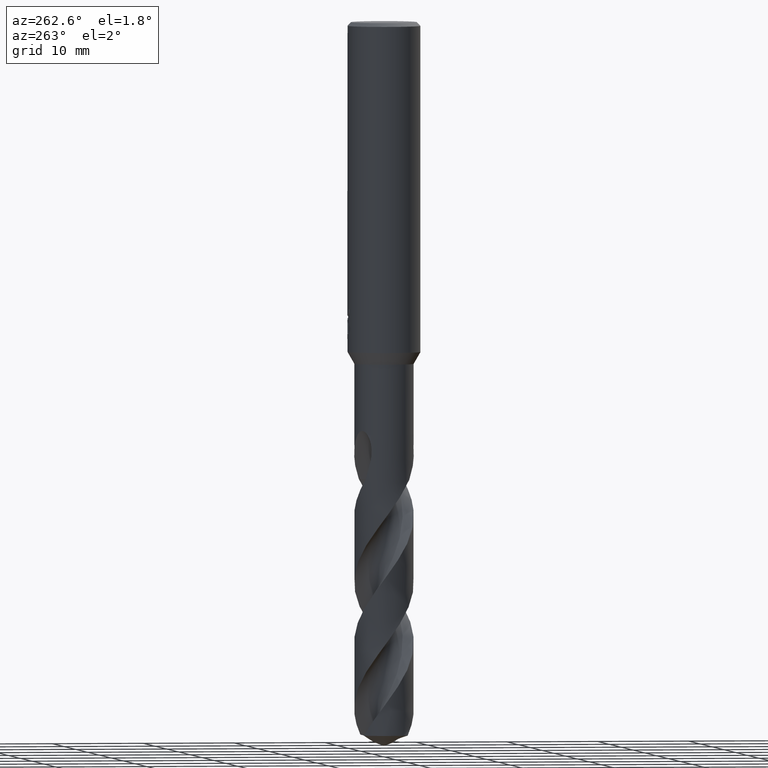
[diagram: clean part render]
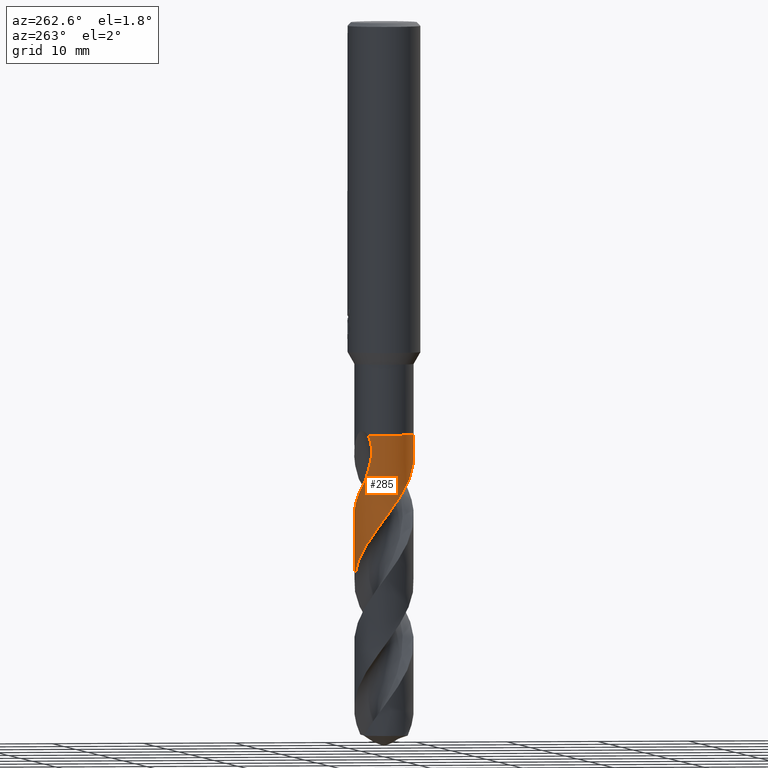
[diagram: same view with one face highlighted and labeled with its STEP entity id]
A machine part, auxiliary view. The second image highlights one B-rep face of the part: STEP entity #285.
In plain terms, the highlighted conical surface has half-angle 0 deg.
Its self-contained STEP definition (entity closure, byte-faithful):
#285=ADVANCED_FACE('',(#778),#779,.T.);
#339=EDGE_CURVE('',#475,#585,#840,.T.);
#341=EDGE_CURVE('',#401,#531,#842,.T.);
#369=EDGE_CURVE('',#639,#691,#870,.T.);
#401=VERTEX_POINT('',#903);
#469=EDGE_CURVE('',#531,#577,#978,.T.);
#475=VERTEX_POINT('',#984);
#531=VERTEX_POINT('',#1046);
#573=EDGE_CURVE('',#585,#639,#1092,.T.);
#577=VERTEX_POINT('',#1096);
#583=EDGE_CURVE('',#691,#709,#1102,.T.);
#585=VERTEX_POINT('',#1104);
#639=VERTEX_POINT('',#1162);
#691=VERTEX_POINT('',#1218);
#695=EDGE_CURVE('',#577,#475,#1223,.T.);
#709=VERTEX_POINT('',#1239);
#717=EDGE_CURVE('',#709,#401,#1247,.T.);
#778=FACE_OUTER_BOUND('',#1327,.T.);
#779=CONICAL_SURFACE('',#1328,3.24995,3.04719216316822E-006);
#840=B_SPLINE_CURVE_WITH_KNOTS('',3,(#1645,#1646,#1647,#1648,#1649,#1650,#1651,#1652,#1653,#1654,#1655,#1656,#1657,#1658,#1659,#1660,#1661,#1662,#1663,#1664,#1665,#1666,#1667,#1668,#1669,#1670,#1671,#1672,#1673,#1674,#1675,#1676,#1677,#1678,#1679,#1680,#1681,#1682,#1683,#1684,#1685,#1686,#1687,#1688,#1689,#1690,#1691,#1692,#1693,#1694,#1695,#1696,#1697,#1698,#1699,#1700,#1701,#1702,#1703,#1704,#1705,#1706,#1707,#1708,#1709,#1710,#1711,#1712,#1713,#1714,#1715,#1716,#1717,#1718,#1719,#1720,#1721,#1722,#1723,#1724),.UNSPECIFIED.,.F.,.F.,(4,2,2,2,2,2,2,2,2,2,2,2,2,2,2,2,2,2,2,2,2,2,2,2,2,2,2,2,2,2,2,2,2,2,2,2,2,2,2,4),(0.0,0.983665391134444,2.75910308088946,3.65809936051035,5.26265063626242,5.37314746224413,6.97835209468433,8.40051304022964,9.2791673848453,10.7137345854924,11.6210456378193,12.3365606382478,14.1359759797544,14.6077072003204,16.4008560532842,17.1328261345933,18.5822880936872,19.5126306811242,21.1630871722539,21.3853476117181,23.0974080366141,23.8768000316801,24.8843037989107,25.3753689189037,26.1297687286249,27.9382535606636,28.3982312158217,31.4630458866622,31.7150535865154,32.3464937831342,33.0252113805865,33.4818274252199,33.7084625171009,33.8233603573364,34.0559674918704,34.1999740187387,34.3388334410832,34.5323042118412,34.948361910497,35.4005823339362),.UNSPECIFIED.);
#842=B_SPLINE_CURVE_WITH_KNOTS('',3,(#1727,#1728,#1729,#1730),.UNSPECIFIED.,.F.,.F.,(4,4),(0.0,1.8676977938797),.UNSPECIFIED.);
#870=LINE('',#1877,#1878);
#903=CARTESIAN_POINT('',(-2.64425046474744,1.88940511039974,-48.1395027681756));
#978=B_SPLINE_CURVE_WITH_KNOTS('',3,(#2530,#2531,#2532,#2533,#2534,#2535,#2536,#2537,#2538,#2539,#2540,#2541,#2542,#2543,#2544,#2545,#2546,#2547,#2548,#2549,#2550,#2551,#2552,#2553,#2554,#2555,#2556,#2557,#2558,#2559,#2560,#2561,#2562,#2563,#2564,#2565,#2566,#2567,#2568,#2569,#2570,#2571,#2572,#2573,#2574,#2575,#2576,#2577,#2578,#2579,#2580,#2581,#2582,#2583,#2584,#2585,#2586,#2587,#2588,#2589,#2590,#2591,#2592,#2593,#2594,#2595,#2596,#2597,#2598,#2599,#2600,#2601,#2602,#2603,#2604,#2605,#2606,#2607,#2608,#2609,#2610,#2611,#2612,#2613,#2614,#2615,#2616,#2617,#2618,#2619,#2620,#2621,#2622,#2623,#2624,#2625),.UNSPECIFIED.,.F.,.F.,(4,2,2,2,2,2,2,2,2,2,2,2,2,2,2,2,2,2,2,2,2,2,2,2,2,2,2,2,2,2,2,2,2,2,2,2,2,2,2,2,2,2,2,2,2,2,2,4),(0.0,0.13524948525001,0.21968053321123,0.267645933278355,0.622783640013253,0.747589514789866,0.827670072782392,0.903021253803392,1.00423111201466,1.11681033719738,1.14583017749035,1.5677722196234,1.84797223474476,2.13015400878819,2.43184821658585,3.25696375811019,3.63748511997352,5.36107720581932,5.80623134607051,6.69666142402685,6.9157204263409,8.14896258452247,8.59549310403067,9.36676834296193,10.7090441924271,11.5948573725455,12.9304560222011,13.3749544646522,13.6960002597878,14.8129194795218,16.6063229108804,17.4957083977215,18.3805178463799,19.7126591555047,20.599801830098,22.4584432131919,22.7685291385893,23.9192284391475,24.814737308869,24.9595862303241,27.0923468931997,27.1639221009443,29.1891540523851,29.8335881278644,31.0343882318652,31.9432093677009,33.3073736294501,34.6784300651466),.UNSPECIFIED.);
#984=CARTESIAN_POINT('',(2.89572635560244E-013,3.24994747932706,-60.581336693422));
#1046=CARTESIAN_POINT('',(-2.25894124389053,2.33647852403478,-49.919));
#1092=B_SPLINE_CURVE_WITH_KNOTS('',3,(#4264,#4265,#4266,#4267,#4268,#4269,#4270,#4271,#4272,#4273,#4274,#4275,#4276,#4277),.UNSPECIFIED.,.F.,.F.,(4,2,2,2,2,2,4),(0.0,1.59232764494869,2.46176709049824,3.24924955706866,4.16409689058754,5.26302576219932,5.83049748988237),.UNSPECIFIED.);
#1096=CARTESIAN_POINT('',(1.35472060674324E-012,3.24992530701126,-53.3050263650971));
#1102=CIRCLE('',#4314,3.2499);
#1104=CARTESIAN_POINT('',(-2.07092301992372,-2.50464074912461,-49.919));
#1162=CARTESIAN_POINT('',(9.59879196618382E-013,-3.24990446210022,-46.4643317463092));
#1218=CARTESIAN_POINT('',(4.04827718362566E-016,-3.2499,-45.0));
#1223=LINE('',#4918,#4919);
#1239=CARTESIAN_POINT('',(-2.46162340967798,2.12185301067848,-45.0));
#1247=B_SPLINE_CURVE_WITH_KNOTS('',3,(#5038,#5039,#5040,#5041,#5042,#5043,#5044,#5045),.UNSPECIFIED.,.F.,.F.,(4,2,2,4),(0.0,0.608096103198699,1.45884024531713,2.2707351324946),.UNSPECIFIED.);
#1327=EDGE_LOOP('',(#5249,#5250,#5251,#5252,#5253,#5254,#5255,#5256));
#1328=AXIS2_PLACEMENT_3D('',#5257,#5258,#5259);
#1645=CARTESIAN_POINT('',(-2.28421874379144,-2.31189202397341,-77.8170967386348));
#1646=CARTESIAN_POINT('',(-2.14590276880071,-2.4485512298214,-77.5530819717098));
#1647=CARTESIAN_POINT('',(-1.99545839732133,-2.57264799500493,-77.2894104908947));
#1648=CARTESIAN_POINT('',(-1.54484740932789,-2.88085616016558,-76.5501218769557));
#1649=CARTESIAN_POINT('',(-1.2249248184351,-3.03070040076726,-76.083866955313));
#1650=CARTESIAN_POINT('',(-0.716451839929845,-3.17501421662391,-75.367613243669));
#1651=CARTESIAN_POINT('',(-0.541682665411404,-3.20947787937438,-75.1251178875884));
#1652=CARTESIAN_POINT('',(-0.0488216022496973,-3.26513437527639,-74.4541244755426));
#1653=CARTESIAN_POINT('',(0.270092185258212,-3.25420043559402,-74.0308245240657));
#1654=CARTESIAN_POINT('',(0.603211070228706,-3.19359173424832,-73.5705416255078));
#1655=CARTESIAN_POINT('',(0.624590982877788,-3.1894789780216,-73.5409019500806));
#1656=CARTESIAN_POINT('',(0.956156661684653,-3.12223635856164,-73.0808202603254));
#1657=CARTESIAN_POINT('',(1.25601460785545,-3.01426900501206,-72.6572698826322));
#1658=CARTESIAN_POINT('',(1.78419234186006,-2.73099113509072,-71.8481920041753));
#1659=CARTESIAN_POINT('',(2.01378131720147,-2.56638792785053,-71.465765802663));
#1660=CARTESIAN_POINT('',(2.34655698347689,-2.25528218161747,-70.8509012232712));
#1661=CARTESIAN_POINT('',(2.46386743854311,-2.12648953469079,-70.6172443095749));
#1662=CARTESIAN_POINT('',(2.74405849266091,-1.7643996525411,-69.9990250113062));
#1663=CARTESIAN_POINT('',(2.88759137213105,-1.51817684287419,-69.6133846157493));
#1664=CARTESIAN_POINT('',(3.06684270712981,-1.09045158334607,-68.9876419762722));
#1665=CARTESIAN_POINT('',(3.12239442951196,-0.919342200042017,-68.7464290043673));
#1666=CARTESIAN_POINT('',(3.1959486748408,-0.606843966057436,-68.3126248682684));
#1667=CARTESIAN_POINT('',(3.21926966569659,-0.467363915875545,-68.1204657591997));
#1668=CARTESIAN_POINT('',(3.26909978488327,0.0249324375969891,-67.4486933194747));
#1669=CARTESIAN_POINT('',(3.24698206709829,0.380554273971085,-66.9777092886629));
#1670=CARTESIAN_POINT('',(3.14715690075955,0.816270223044584,-66.3719604003269));
#1671=CARTESIAN_POINT('',(3.12260421962286,0.905641456386448,-66.2457262967772));
#1672=CARTESIAN_POINT('',(2.98666815933366,1.3288872928379,-65.6421252382082));
#1673=CARTESIAN_POINT('',(2.82536388276951,1.64426080750144,-65.1737439362201));
#1674=CARTESIAN_POINT('',(2.53119054415327,2.04352074587085,-64.5018980728138));
#1675=CARTESIAN_POINT('',(2.43844694805308,2.15334813630942,-64.3062130213932));
#1676=CARTESIAN_POINT('',(2.14069301787273,2.46187366944025,-63.7256341078859));
#1677=CARTESIAN_POINT('',(1.91678823609596,2.6399469885341,-63.3449553419075));
#1678=CARTESIAN_POINT('',(1.51567786928156,2.88068867614462,-62.7120350268847));
#1679=CARTESIAN_POINT('',(1.35141151289515,2.96130831398007,-62.4631806832739));
#1680=CARTESIAN_POINT('',(0.878642149756897,3.1457094675119,-61.7767425155603));
#1681=CARTESIAN_POINT('',(0.56078050946317,3.21750024542371,-61.3448896363162));
#1682=CARTESIAN_POINT('',(0.194779214120305,3.24439855709382,-60.8461811868482));
#1683=CARTESIAN_POINT('',(0.151358104064663,3.2467138713551,-60.7869463509008));
#1684=CARTESIAN_POINT('',(-0.227541000087503,3.25928969252626,-60.2716846769372));
#1685=CARTESIAN_POINT('',(-0.562896501327766,3.21845583865635,-59.8238657657993));
#1686=CARTESIAN_POINT('',(-1.03387528957929,3.0849124937761,-59.161978040198));
#1687=CARTESIAN_POINT('',(-1.17776657143369,3.03287172637546,-58.9538196528927));
#1688=CARTESIAN_POINT('',(-1.4978159303249,2.89095663934557,-58.4792147107816));
#1689=CARTESIAN_POINT('',(-1.67089315063239,2.79454212011481,-58.2134365212139));
#1690=CARTESIAN_POINT('',(-1.91410444297003,2.62823698093625,-57.8162992255261));
#1691=CARTESIAN_POINT('',(-1.99125256633766,2.57027191259476,-57.6862997188599));
#1692=CARTESIAN_POINT('',(-2.17990882613229,2.4149536789774,-57.3558660459623));
#1693=CARTESIAN_POINT('',(-2.28736394837667,2.31339621188778,-57.1546566481703));
#1694=CARTESIAN_POINT('',(-2.62726603235897,1.94538311662351,-56.474969460155));
#1695=CARTESIAN_POINT('',(-2.8231074656094,1.64838065962852,-56.0048219864784));
#1696=CARTESIAN_POINT('',(-3.0040044727342,1.24342321630764,-55.4040278897816));
#1697=CARTESIAN_POINT('',(-3.03722285297398,1.15991967162902,-55.281872677361));
#1698=CARTESIAN_POINT('',(-3.26511751204165,0.509777102613225,-54.3481375468624));
#1699=CARTESIAN_POINT('',(-3.30245478240088,-0.0975207267805829,-53.5623434775719));
#1700=CARTESIAN_POINT('',(-3.16795741990088,-0.726938386982059,-52.685632060252));
#1701=CARTESIAN_POINT('',(-3.15673092349855,-0.774229235080621,-52.6191290008079));
#1702=CARTESIAN_POINT('',(-3.11350230287293,-0.939703469010488,-52.3860198526756));
#1703=CARTESIAN_POINT('',(-3.07575888123671,-1.05691120760783,-52.2197811993075));
#1704=CARTESIAN_POINT('',(-2.98298050653343,-1.29675010481189,-51.876580067436));
#1705=CARTESIAN_POINT('',(-2.92940837141544,-1.41322767019953,-51.7105822084603));
#1706=CARTESIAN_POINT('',(-2.82794041982028,-1.60383041269416,-51.4217793973828));
#1707=CARTESIAN_POINT('',(-2.78480110328437,-1.67745214374326,-51.3052858380027));
#1708=CARTESIAN_POINT('',(-2.7175253382715,-1.78290462654209,-51.1280600326646));
#1709=CARTESIAN_POINT('',(-2.69483791866856,-1.81698913298543,-51.068991545154));
#1710=CARTESIAN_POINT('',(-2.66019302562289,-1.86701918263416,-50.9792420289993));
#1711=CARTESIAN_POINT('',(-2.64847209505657,-1.88360540663557,-50.9489542074979));
#1712=CARTESIAN_POINT('',(-2.61284768993885,-1.93304336679374,-50.8569751703464));
#1713=CARTESIAN_POINT('',(-2.59786792410891,-1.95303476816026,-50.8172004203064));
#1714=CARTESIAN_POINT('',(-2.56230963886875,-1.9992573786466,-50.7304485126799));
#1715=CARTESIAN_POINT('',(-2.5482873641006,-2.017109377263,-50.6975972763491));
#1716=CARTESIAN_POINT('',(-2.51981279928443,-2.05256018110205,-50.6336016717855));
#1717=CARTESIAN_POINT('',(-2.50541779878391,-2.07011515067326,-50.6024924411644));
#1718=CARTESIAN_POINT('',(-2.46988464673943,-2.11250235044437,-50.5286900804116));
#1719=CARTESIAN_POINT('',(-2.44836807124571,-2.13742557751674,-50.4863505897103));
#1720=CARTESIAN_POINT('',(-2.37771996050624,-2.21667673640938,-50.3546790803292));
#1721=CARTESIAN_POINT('',(-2.32563432621305,-2.27147473370627,-50.2679551190718));
#1722=CARTESIAN_POINT('',(-2.20782653459278,-2.38637777849509,-50.0920885883813));
#1723=CARTESIAN_POINT('',(-2.14185408924076,-2.44599284101095,-50.0042018816678));
#1724=CARTESIAN_POINT('',(-2.07092301992372,-2.50464074912461,-49.919));
#1727=CARTESIAN_POINT('',(-2.64425046480006,1.8894051103261,-48.1395027682045));
#1728=CARTESIAN_POINT('',(-2.53947921024538,2.0360371578468,-48.7354141422073));
#1729=CARTESIAN_POINT('',(-2.41320289001457,2.18733365670986,-49.3348712282063));
#1730=CARTESIAN_POINT('',(-2.25894124389053,2.33647852403478,-49.919));
#1877=CARTESIAN_POINT('',(4.04833841394335E-016,-3.24995,-61.4085483693174));
#1878=VECTOR('',#5362,1.0);
#2530=CARTESIAN_POINT('',(-2.25894124389053,2.33647852403478,-49.919));
#2531=CARTESIAN_POINT('',(-2.24052684898697,2.35428198471735,-49.9561003816886));
#2532=CARTESIAN_POINT('',(-2.22185300659982,2.37191592958719,-49.9931688461739));
#2533=CARTESIAN_POINT('',(-2.19101007202731,2.40035099796653,-50.0532931229609));
#2534=CARTESIAN_POINT('',(-2.17904769648879,2.41121651175456,-50.0763535836736));
#2535=CARTESIAN_POINT('',(-2.16008194180627,2.42818497554738,-50.1124792815601));
#2536=CARTESIAN_POINT('',(-2.15317302786511,2.43431368989562,-50.125550710793));
#2537=CARTESIAN_POINT('',(-2.09475142466438,2.48569271808815,-50.235318510366));
#2538=CARTESIAN_POINT('',(-2.04197607365546,2.52928097644381,-50.3294506495029));
#2539=CARTESIAN_POINT('',(-1.96654280625591,2.58752423618573,-50.4576645306723));
#2540=CARTESIAN_POINT('',(-1.94669545896945,2.60249101507014,-50.4908594992173));
#2541=CARTESIAN_POINT('',(-1.91367173760601,2.62679980139235,-50.5453267107488));
#2542=CARTESIAN_POINT('',(-1.9006738993496,2.63622034981135,-50.5665754320497));
#2543=CARTESIAN_POINT('',(-1.87525887844717,2.65435383866795,-50.6078040314241));
#2544=CARTESIAN_POINT('',(-1.8628649901338,2.66306694541644,-50.6277648822459));
#2545=CARTESIAN_POINT('',(-1.83364816103671,2.68330241775188,-50.6745348283527));
#2546=CARTESIAN_POINT('',(-1.81678630823609,2.69474784056603,-50.7013088252065));
#2547=CARTESIAN_POINT('',(-1.78093546596912,2.71859283273814,-50.7579050601373));
#2548=CARTESIAN_POINT('',(-1.76195033344947,2.7309351852017,-50.787684507289));
#2549=CARTESIAN_POINT('',(-1.73794480874395,2.7461877580993,-50.8252157633392));
#2550=CARTESIAN_POINT('',(-1.73305623430008,2.7492755035423,-50.8328537669168));
#2551=CARTESIAN_POINT('',(-1.65612611398403,2.7975771146773,-50.9530395566365));
#2552=CARTESIAN_POINT('',(-1.5829049042094,2.83960976194766,-51.0669484396411));
#2553=CARTESIAN_POINT('',(-1.45958031959901,2.90425321795817,-51.2560439008272));
#2554=CARTESIAN_POINT('',(-1.40976045188458,2.92875857906022,-51.3317218387542));
#2555=CARTESIAN_POINT('',(-1.30865190993189,2.97531984720404,-51.4834196911607));
#2556=CARTESIAN_POINT('',(-1.25724954880536,2.99740591418664,-51.5595978342219));
#2557=CARTESIAN_POINT('',(-1.14959325128235,3.04039573020335,-51.7168893629376));
#2558=CARTESIAN_POINT('',(-1.09350796786389,3.06101537960399,-51.7975265518715));
#2559=CARTESIAN_POINT('',(-0.881409412582097,3.13240519369149,-52.0995190008135));
#2560=CARTESIAN_POINT('',(-0.722482624682513,3.17282104095351,-52.3195329674357));
#2561=CARTESIAN_POINT('',(-0.486963076021896,3.21411945064584,-52.6429307697993));
#2562=CARTESIAN_POINT('',(-0.41226532095458,3.22454890137274,-52.7451584799592));
#2563=CARTESIAN_POINT('',(0.00203638027526309,3.26778848417751,-53.3097873666814));
#2564=CARTESIAN_POINT('',(0.345115319110308,3.24956524068924,-53.7678284658165));
#2565=CARTESIAN_POINT('',(0.765564245895876,3.15970482903592,-54.3493265505526));
#2566=CARTESIAN_POINT('',(0.851066044109428,3.13775520969842,-54.4686736049624));
#2567=CARTESIAN_POINT('',(1.10456015274083,3.06155752947364,-54.8268243236192));
#2568=CARTESIAN_POINT('',(1.26919438403989,2.99706100822855,-55.0651237430959));
#2569=CARTESIAN_POINT('',(1.46684222401146,2.90039932450592,-55.3625432398104));
#2570=CARTESIAN_POINT('',(1.50546749052598,2.88053985805639,-55.4212432831757));
#2571=CARTESIAN_POINT('',(1.75882024734491,2.74379015342896,-55.8107166997752));
#2572=CARTESIAN_POINT('',(1.96025429302539,2.6037116282809,-56.1410732144173));
#2573=CARTESIAN_POINT('',(2.21065193868643,2.38389235011958,-56.5915037259038));
#2574=CARTESIAN_POINT('',(2.2748125477262,2.32274880042763,-56.7111510520659));
#2575=CARTESIAN_POINT('',(2.44279857007327,2.14901139131992,-57.0376228476758));
#2576=CARTESIAN_POINT('',(2.54120656940809,2.03168174506354,-57.2439576676521));
#2577=CARTESIAN_POINT('',(2.78713749357395,1.69255649658643,-57.8110536076767));
#2578=CARTESIAN_POINT('',(2.91639671705331,1.45866384848761,-58.1703014082566));
#2579=CARTESIAN_POINT('',(3.08122855744357,1.04835914078452,-58.7678070314002));
#2580=CARTESIAN_POINT('',(3.13338239179747,0.880279617883342,-59.0045836182265));
#2581=CARTESIAN_POINT('',(3.22945768288493,0.450416924830831,-59.6006852344009));
#2582=CARTESIAN_POINT('',(3.25544755535278,0.185712921565866,-59.958269734234));
#2583=CARTESIAN_POINT('',(3.2468257830931,-0.167518898468489,-60.4357540035383));
#2584=CARTESIAN_POINT('',(3.24108179528656,-0.255604845821207,-60.5548937591455));
#2585=CARTESIAN_POINT('',(3.2250259403168,-0.406733376555707,-60.7602200649519));
#2586=CARTESIAN_POINT('',(3.21643292102885,-0.469872837518866,-60.8462735935306));
#2587=CARTESIAN_POINT('',(3.16966960600291,-0.751314922154034,-61.2321621243739));
#2588=CARTESIAN_POINT('',(3.11107263101935,-0.965676015544159,-61.5318094888697));
#2589=CARTESIAN_POINT('',(2.90273581673597,-1.50431785450918,-62.312926031298));
#2590=CARTESIAN_POINT('',(2.7207325087104,-1.81281704605941,-62.7901642244758));
#2591=CARTESIAN_POINT('',(2.37931830788771,-2.22084877467759,-63.5104465507443));
#2592=CARTESIAN_POINT('',(2.25524210149917,-2.34676149870504,-63.7487668343931));
#2593=CARTESIAN_POINT('',(1.98837188748181,-2.57671749589707,-64.2247819367838));
#2594=CARTESIAN_POINT('',(1.84628072628081,-2.68035272955408,-64.461426140657));
#2595=CARTESIAN_POINT('',(1.47118011971566,-2.90993290296217,-65.0566404414851));
#2596=CARTESIAN_POINT('',(1.22965417030319,-3.01996574368919,-65.4134787363041));
#2597=CARTESIAN_POINT('',(0.809323679312879,-3.15250702255049,-66.0090603071958));
#2598=CARTESIAN_POINT('',(0.6373580850561,-3.19171339796128,-66.2463487733992));
#2599=CARTESIAN_POINT('',(0.0980696740116077,-3.26935624462193,-66.9836659542081));
#2600=CARTESIAN_POINT('',(-0.27355076177267,-3.25941710786335,-67.4795913646124));
#2601=CARTESIAN_POINT('',(-0.696066490837018,-3.17515242670784,-68.0616659554058));
#2602=CARTESIAN_POINT('',(-0.756094309416228,-3.16139519368352,-68.1448481786568));
#2603=CARTESIAN_POINT('',(-1.03681971959604,-3.08860955961237,-68.5371498959495));
#2604=CARTESIAN_POINT('',(-1.25135537470872,-3.00809859208672,-68.8460004426114));
#2605=CARTESIAN_POINT('',(-1.61468893596845,-2.82608254639511,-69.395541713806));
#2606=CARTESIAN_POINT('',(-1.76692554804231,-2.73349054267058,-69.6353514442141));
#2607=CARTESIAN_POINT('',(-1.93413057557065,-2.61195533711159,-69.9146675075392));
#2608=CARTESIAN_POINT('',(-1.95717721635509,-2.59473106934487,-69.9535495152534));
#2609=CARTESIAN_POINT('',(-2.31591575725037,-2.31912482558963,-70.5652892237698));
#2610=CARTESIAN_POINT('',(-2.59837863110497,-1.99762246072204,-71.1338149441444));
#2611=CARTESIAN_POINT('',(-2.81825255165291,-1.61865199996717,-71.725851885801));
#2612=CARTESIAN_POINT('',(-2.825309697259,-1.60630234383417,-71.7450726179556));
#2613=CARTESIAN_POINT('',(-3.02969785333866,-1.24311867472902,-72.3084077689217));
#2614=CARTESIAN_POINT('',(-3.16034687150029,-0.858404211267797,-72.8496864710786));
#2615=CARTESIAN_POINT('',(-3.23544570469213,-0.332768757103861,-73.5670542030932));
#2616=CARTESIAN_POINT('',(-3.24604051300018,-0.205006571151125,-73.7401222403163));
#2617=CARTESIAN_POINT('',(-3.25472965806091,0.16143667882921,-74.2363014351048));
#2618=CARTESIAN_POINT('',(-3.23411683757622,0.399962968762902,-74.5583439528387));
#2619=CARTESIAN_POINT('',(-3.15223367059517,0.811508975578695,-75.1252406985295));
#2620=CARTESIAN_POINT('',(-3.10226026994929,0.985407596816783,-75.3685975679523));
#2621=CARTESIAN_POINT('',(-2.94190496698923,1.40751512518309,-75.9799740080971));
#2622=CARTESIAN_POINT('',(-2.81427970083573,1.6480063565771,-76.3462209283022));
#2623=CARTESIAN_POINT('',(-2.50125611144297,2.09298194948678,-77.0816124956926));
#2624=CARTESIAN_POINT('',(-2.31688177475165,2.29541968912622,-77.4484896145413));
#2625=CARTESIAN_POINT('',(-2.10937611107329,2.47245473609394,-77.8170967386348));
#4264=CARTESIAN_POINT('',(-2.07092301992372,-2.50464074912461,-49.919));
#4265=CARTESIAN_POINT('',(-1.85654647060024,-2.68189285779414,-49.4669519697939));
#4266=CARTESIAN_POINT('',(-1.61005928988583,-2.83945977268261,-49.0454974552605));
#4267=CARTESIAN_POINT('',(-1.18025722723467,-3.0325902546173,-48.3414347090896));
#4268=CARTESIAN_POINT('',(-1.02559440520145,-3.08814646430826,-48.0937235055493));
#4269=CARTESIAN_POINT('',(-0.726187723272255,-3.17117631956616,-47.614223520484));
#4270=CARTESIAN_POINT('',(-0.582780528786654,-3.200510437614,-47.3846691957173));
#4271=CARTESIAN_POINT('',(-0.272366646031456,-3.24284599269116,-46.8899250341342));
#4272=CARTESIAN_POINT('',(-0.102766649129332,-3.2527850685002,-46.6208623055704));
#4273=CARTESIAN_POINT('',(0.27387038384906,-3.24486181567546,-46.0452525919497));
#4274=CARTESIAN_POINT('',(0.497177191453325,-3.22035768338344,-45.7177271941473));
#4275=CARTESIAN_POINT('',(0.846980508688198,-3.13997114056217,-45.2790160117724));
#4276=CARTESIAN_POINT('',(0.975438935405445,-3.1033136391901,-45.1306945994727));
#4277=CARTESIAN_POINT('',(1.10898202220433,-3.05483369177891,-45.0));
#4314=AXIS2_PLACEMENT_3D('',#5613,#5614,#5615);
#4918=CARTESIAN_POINT('',(-3.91148042526672E-016,3.24995,-61.4085483693174));
#4919=VECTOR('',#5726,1.0);
#5038=CARTESIAN_POINT('',(-2.46162340967798,2.12185301067848,-45.0));
#5039=CARTESIAN_POINT('',(-2.54191633283575,2.02870360655079,-45.161130377072));
#5040=CARTESIAN_POINT('',(-2.60523819917876,1.94456566582919,-45.3614294227367));
#5041=CARTESIAN_POINT('',(-2.71906224266372,1.78375154538822,-45.9131545698319));
#5042=CARTESIAN_POINT('',(-2.75691531136373,1.72084836056197,-46.3032442332505));
#5043=CARTESIAN_POINT('',(-2.76210888869607,1.71250408082016,-47.1556513642656));
#5044=CARTESIAN_POINT('',(-2.7348101362173,1.76266280784335,-47.6244334637374));
#5045=CARTESIAN_POINT('',(-2.64425046474744,1.88940511039974,-48.1395027681756));
#5249=ORIENTED_EDGE('',*,*,#695,.T.);
#5250=ORIENTED_EDGE('',*,*,#339,.T.);
#5251=ORIENTED_EDGE('',*,*,#573,.T.);
#5252=ORIENTED_EDGE('',*,*,#369,.T.);
#5253=ORIENTED_EDGE('',*,*,#583,.T.);
#5254=ORIENTED_EDGE('',*,*,#717,.T.);
#5255=ORIENTED_EDGE('',*,*,#341,.T.);
#5256=ORIENTED_EDGE('',*,*,#469,.T.);
#5257=CARTESIAN_POINT('',(0.0,0.0,-61.4085483693174));
#5258=DIRECTION('',(0.0,-0.0,-1.0));
#5259=DIRECTION('',(0.0,1.0,0.0));
#5362=DIRECTION('',(-3.73161088432779E-022,3.04719216316351E-006,0.999999999995357));
#5613=CARTESIAN_POINT('',(0.0,0.0,-45.0));
#5614=DIRECTION('',(0.0,0.0,-1.0));
#5615=DIRECTION('',(0.0,1.0,0.0));
#5726=DIRECTION('',(-3.73161088432779E-022,3.04719216316351E-006,-0.999999999995357));